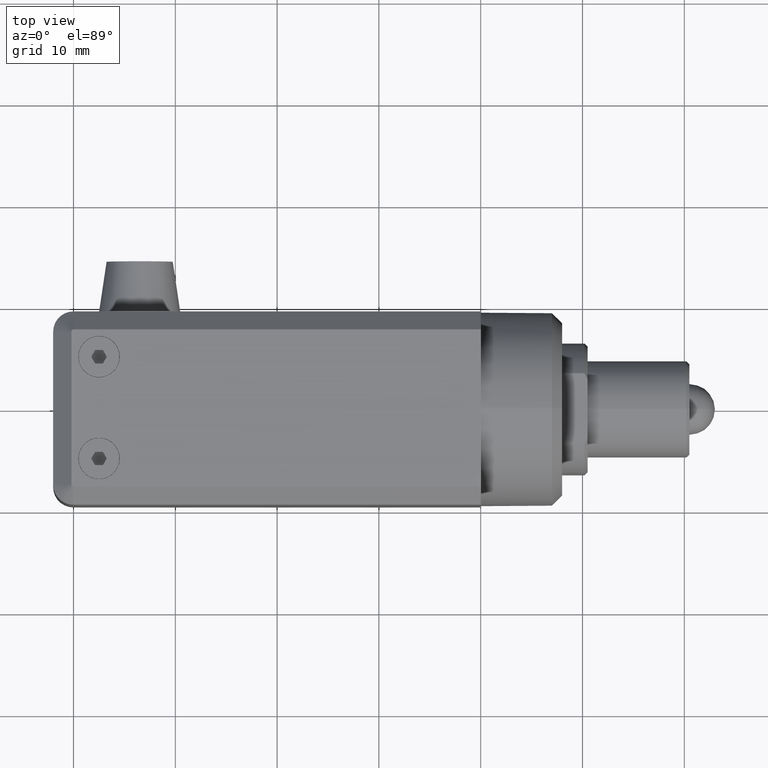
[diagram: clean part render]
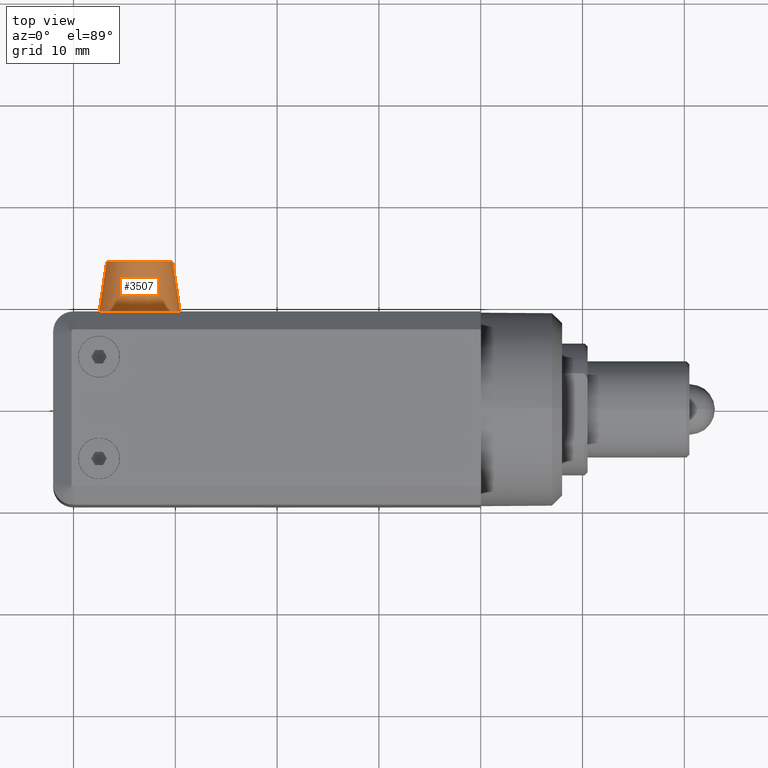
[diagram: same view with one face highlighted and labeled with its STEP entity id]
A machine part, top view. The second image highlights one B-rep face of the part: STEP entity #3507.
In plain terms, the highlighted conical surface has half-angle 8.531 deg.
Its self-contained STEP definition (entity closure, byte-faithful):
#97 = DIRECTION ( 'NONE',  ( 1.000000000000000000, 0.000000000000000000, 3.463895836830490299E-14 ) ) ;
#297 = LINE ( 'NONE', #8332, #20397 ) ;
#388 = CARTESIAN_POINT ( 'NONE',  ( -33.50000000000000000, 9.499999999952706276, 0.000000000000000000 ) ) ;
#424 = CARTESIAN_POINT ( 'NONE',  ( -36.74999999999988631, 14.50000000000500222, 4.439344646906860438E-16 ) ) ;
#2737 = CARTESIAN_POINT ( 'NONE',  ( -37.49999999999636202, 9.500000000009549694, 4.898587196584956751E-16 ) ) ;
#2870 = VERTEX_POINT ( 'NONE', #24297 ) ;
#2949 = EDGE_CURVE ( 'NONE', #2870, #18911, #19347, .T. ) ;
#3507 = ADVANCED_FACE ( 'NONE', ( #21280 ), #14787, .T. ) ;
#3751 = EDGE_CURVE ( 'NONE', #19607, #6707, #10009, .T. ) ;
#4341 = AXIS2_PLACEMENT_3D ( 'NONE', #388, #8559, #10823 ) ;
#5252 = ORIENTED_EDGE ( 'NONE', *, *, #2949, .T. ) ;
#5533 = CIRCLE ( 'NONE', #23652, 3.249999999999884981 ) ;
#5671 = ORIENTED_EDGE ( 'NONE', *, *, #17976, .T. ) ;
#6484 = EDGE_CURVE ( 'NONE', #18391, #19607, #297, .T. ) ;
#6707 = VERTEX_POINT ( 'NONE', #13974 ) ;
#7282 = CARTESIAN_POINT ( 'NONE',  ( -29.49999999999511502, 9.499999999952706276, 0.000000000000000000 ) ) ;
#7346 = AXIS2_PLACEMENT_3D ( 'NONE', #17302, #19175, #97 ) ;
#7698 = CARTESIAN_POINT ( 'NONE',  ( -33.50000000000000000, 9.500000000009549694, 0.000000000000000000 ) ) ;
#7736 = CIRCLE ( 'NONE', #7346, 3.999999999996360689 ) ;
#8122 = ORIENTED_EDGE ( 'NONE', *, *, #12342, .T. ) ;
#8332 = CARTESIAN_POINT ( 'NONE',  ( -37.50000000000488853, 9.499999999952706276, 4.898587196595399297E-16 ) ) ;
#8559 = DIRECTION ( 'NONE',  ( 0.000000000000000000, -1.000000000000000000, 0.000000000000000000 ) ) ;
#8774 = AXIS2_PLACEMENT_3D ( 'NONE', #14869, #16848, #22796 ) ;
#10009 = CIRCLE ( 'NONE', #8774, 3.999999999996360689 ) ;
#10348 = ORIENTED_EDGE ( 'NONE', *, *, #20745, .F. ) ;
#10579 = VERTEX_POINT ( 'NONE', #24258 ) ;
#10701 = VECTOR ( 'NONE', #18825, 1000.000000000000114 ) ;
#10754 = DIRECTION ( 'NONE',  ( 0.000000000000000000, -1.000000000000000000, 0.000000000000000000 ) ) ;
#10823 = DIRECTION ( 'NONE',  ( 1.000000000000000000, 0.000000000000000000, 0.000000000000000000 ) ) ;
#10895 = DIRECTION ( 'NONE',  ( 1.000000000000000000, 0.000000000000000000, 0.000000000000000000 ) ) ;
#11710 = AXIS2_PLACEMENT_3D ( 'NONE', #7698, #15134, #19003 ) ;
#12239 = ORIENTED_EDGE ( 'NONE', *, *, #3751, .T. ) ;
#12342 = EDGE_CURVE ( 'NONE', #10579, #18391, #5533, .T. ) ;
#13647 = DIRECTION ( 'NONE',  ( -0.1483404529296948327, -0.9889363528683798865, 1.816646608644194280E-17 ) ) ;
#13974 = CARTESIAN_POINT ( 'NONE',  ( -37.00000000000000000, 9.500000000000000000, 1.936491673099159927 ) ) ;
#14787 = CONICAL_SURFACE ( 'NONE', #4341, 4.000000000004888534, 0.1488899476089413365 ) ;
#14869 = CARTESIAN_POINT ( 'NONE',  ( -33.50000000000000000, 9.500000000009549694, 0.000000000000000000 ) ) ;
#15134 = DIRECTION ( 'NONE',  ( -0.000000000000000000, 1.000000000000000000, -0.000000000000000000 ) ) ;
#16464 = CARTESIAN_POINT ( 'NONE',  ( -29.50000000000364153, 9.500000000009549694, 0.000000000000000000 ) ) ;
#16848 = DIRECTION ( 'NONE',  ( -0.000000000000000000, 1.000000000000000000, -0.000000000000000000 ) ) ;
#17302 = CARTESIAN_POINT ( 'NONE',  ( -33.50000000000000000, 9.500000000009549694, 0.000000000000000000 ) ) ;
#17976 = EDGE_CURVE ( 'NONE', #6707, #2870, #7736, .T. ) ;
#18391 = VERTEX_POINT ( 'NONE', #424 ) ;
#18593 = ORIENTED_EDGE ( 'NONE', *, *, #6484, .T. ) ;
#18825 = DIRECTION ( 'NONE',  ( 0.1483404529296948327, -0.9889363528683798865, 0.000000000000000000 ) ) ;
#18911 = VERTEX_POINT ( 'NONE', #16464 ) ;
#19003 = DIRECTION ( 'NONE',  ( 1.000000000000000000, 0.000000000000000000, -8.881784197001256268E-16 ) ) ;
#19175 = DIRECTION ( 'NONE',  ( -0.000000000000000000, 1.000000000000000000, -0.000000000000000000 ) ) ;
#19347 = CIRCLE ( 'NONE', #11710, 3.999999999996360689 ) ;
#19607 = VERTEX_POINT ( 'NONE', #2737 ) ;
#20357 = EDGE_LOOP ( 'NONE', ( #8122, #18593, #12239, #5671, #5252, #10348 ) ) ;
#20397 = VECTOR ( 'NONE', #13647, 1000.000000000000114 ) ;
#20745 = EDGE_CURVE ( 'NONE', #10579, #18911, #24573, .T. ) ;
#21280 = FACE_OUTER_BOUND ( 'NONE', #20357, .T. ) ;
#22796 = DIRECTION ( 'NONE',  ( 1.000000000000000000, 0.000000000000000000, -2.664535259100376880E-15 ) ) ;
#23652 = AXIS2_PLACEMENT_3D ( 'NONE', #24268, #10754, #10895 ) ;
#24258 = CARTESIAN_POINT ( 'NONE',  ( -30.25000000000011724, 14.50000000000500222, 0.000000000000000000 ) ) ;
#24268 = CARTESIAN_POINT ( 'NONE',  ( -33.50000000000000000, 14.50000000000500222, 0.000000000000000000 ) ) ;
#24297 = CARTESIAN_POINT ( 'NONE',  ( -36.80242126486484722, 9.500000000000000000, 2.256992199665481813 ) ) ;
#24573 = LINE ( 'NONE', #7282, #10701 ) ;